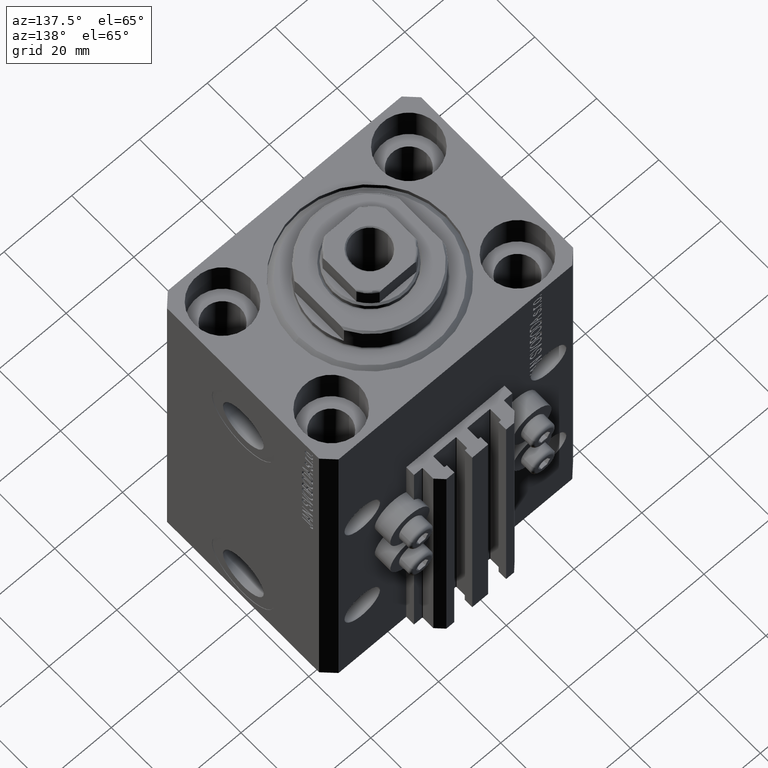
[diagram: clean part render]
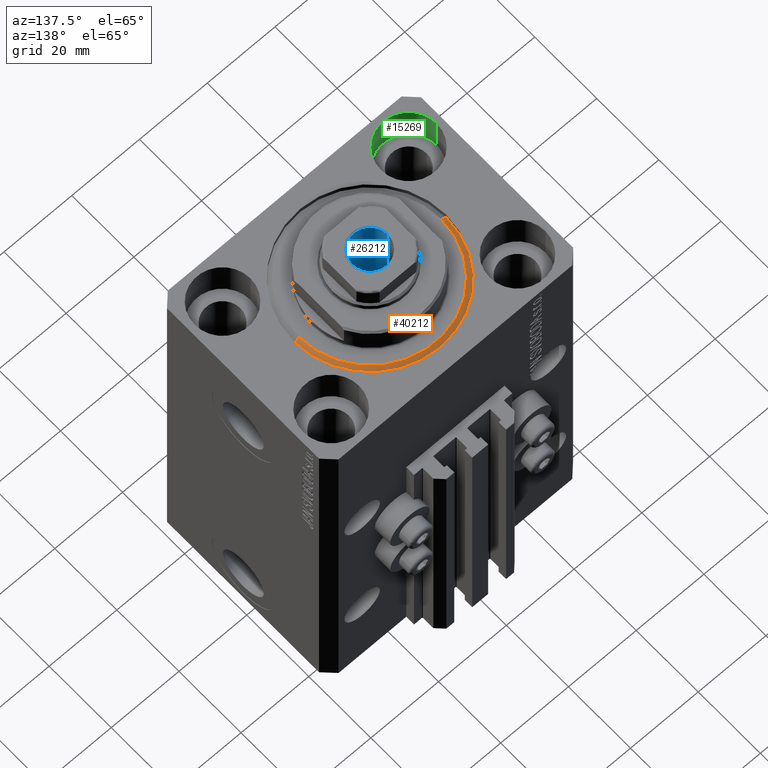
[diagram: same view with three faces highlighted in distinct colors, each labeled with its STEP entity id]
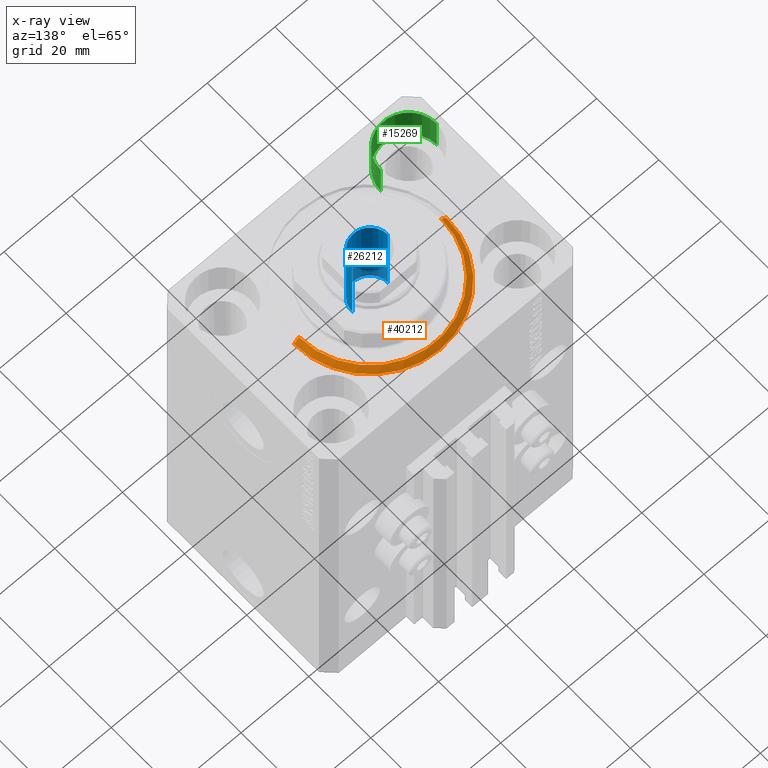
[diagram: x-ray of the same camera — body ghosted, the three highlighted faces saturated]
A machine part, auxiliary view with three faces highlighted in distinct colors.
The next image is the same camera in x-ray (body ghosted, the three faces saturated) — at least one of them is partly hidden behind the body in this view.
Their STEP definitions:

[orange] entity #40212 — the highlighted conical surface has half-angle 45 deg.
#300 = CARTESIAN_POINT ( 'NONE',  ( -22.50000000000000355, 2.755455298081545172E-15, 1.500000000000001332 ) ) ;
#2065 = VECTOR ( 'NONE', #44844, 1000.000000000000114 ) ;
#2604 = FACE_OUTER_BOUND ( 'NONE', #8171, .T. ) ;
#3111 = CONICAL_SURFACE ( 'NONE', #8540, 22.50000000000000355, 0.7853981633974517207 ) ;
#3972 = ORIENTED_EDGE ( 'NONE', *, *, #8157, .F. ) ;
#4776 = AXIS2_PLACEMENT_3D ( 'NONE', #37329, #18914, #33687 ) ;
#5324 = CARTESIAN_POINT ( 'NONE',  ( 22.50000000000000355, 0.000000000000000000, 1.500000000000001332 ) ) ;
#8157 = EDGE_CURVE ( 'NONE', #44807, #45135, #11877, .T. ) ;
#8171 = EDGE_LOOP ( 'NONE', ( #16064, #33522, #29585, #3972 ) ) ;
#8540 = AXIS2_PLACEMENT_3D ( 'NONE', #17365, #13720, #17835 ) ;
#8640 = CIRCLE ( 'NONE', #4776, 22.50000000000000355 ) ;
#10676 = CIRCLE ( 'NONE', #22311, 20.99999999999998934 ) ;
#11877 = LINE ( 'NONE', #5324, #13198 ) ;
#13198 = VECTOR ( 'NONE', #20097, 1000.000000000000114 ) ;
#13281 = DIRECTION ( 'NONE',  ( -0.000000000000000000, -0.000000000000000000, -1.000000000000000000 ) ) ;
#13720 = DIRECTION ( 'NONE',  ( -0.000000000000000000, -0.000000000000000000, 1.000000000000000000 ) ) ;
#14358 = VERTEX_POINT ( 'NONE', #14575 ) ;
#14575 = CARTESIAN_POINT ( 'NONE',  ( -22.50000000000000355, 0.000000000000000000, 1.500000000000001332 ) ) ;
#16064 = ORIENTED_EDGE ( 'NONE', *, *, #35132, .F. ) ;
#17365 = CARTESIAN_POINT ( 'NONE',  ( 0.000000000000000000, 0.000000000000000000, 1.500000000000001332 ) ) ;
#17835 = DIRECTION ( 'NONE',  ( 1.000000000000000000, 0.000000000000000000, 0.000000000000000000 ) ) ;
#18914 = DIRECTION ( 'NONE',  ( -0.000000000000000000, -0.000000000000000000, 1.000000000000000000 ) ) ;
#20097 = DIRECTION ( 'NONE',  ( 0.7071067811865500152, 0.000000000000000000, 0.7071067811865451302 ) ) ;
#22311 = AXIS2_PLACEMENT_3D ( 'NONE', #34610, #13281, #42821 ) ;
#25185 = EDGE_CURVE ( 'NONE', #27845, #14358, #37115, .T. ) ;
#27845 = VERTEX_POINT ( 'NONE', #33130 ) ;
#29457 = CARTESIAN_POINT ( 'NONE',  ( 22.50000000000000355, 2.755455298081545172E-15, 1.500000000000001332 ) ) ;
#29585 = ORIENTED_EDGE ( 'NONE', *, *, #43820, .F. ) ;
#31490 = CARTESIAN_POINT ( 'NONE',  ( 20.99999999999998934, 0.000000000000000000, 0.000000000000000000 ) ) ;
#33130 = CARTESIAN_POINT ( 'NONE',  ( -20.99999999999998934, 2.663606788145492628E-15, 0.000000000000000000 ) ) ;
#33522 = ORIENTED_EDGE ( 'NONE', *, *, #25185, .T. ) ;
#33687 = DIRECTION ( 'NONE',  ( 1.000000000000000000, 0.000000000000000000, 0.000000000000000000 ) ) ;
#34610 = CARTESIAN_POINT ( 'NONE',  ( 0.000000000000000000, 0.000000000000000000, 0.000000000000000000 ) ) ;
#35132 = EDGE_CURVE ( 'NONE', #27845, #44807, #10676, .T. ) ;
#37115 = LINE ( 'NONE', #300, #2065 ) ;
#37329 = CARTESIAN_POINT ( 'NONE',  ( 0.000000000000000000, 0.000000000000000000, 1.500000000000001332 ) ) ;
#40212 = ADVANCED_FACE ( 'NONE', ( #2604 ), #3111, .T. ) ;
#42821 = DIRECTION ( 'NONE',  ( 1.000000000000000000, 0.000000000000000000, 0.000000000000000000 ) ) ;
#43820 = EDGE_CURVE ( 'NONE', #45135, #14358, #8640, .T. ) ;
#44807 = VERTEX_POINT ( 'NONE', #31490 ) ;
#44844 = DIRECTION ( 'NONE',  ( -0.7071067811865500152, 8.659560562354963673E-17, 0.7071067811865451302 ) ) ;
#45135 = VERTEX_POINT ( 'NONE', #29457 ) ;

[blue] entity #26212 — the highlighted cylindrical surface (edge-blend (fillet) strip) has radius 5.25 mm, axis along (0, 0, 1).
#521 = EDGE_CURVE ( 'NONE', #31162, #20158, #8042, .T. ) ;
#3170 = DIRECTION ( 'NONE',  ( 1.000000000000000000, 0.000000000000000000, 0.000000000000000000 ) ) ;
#4415 = CARTESIAN_POINT ( 'NONE',  ( 5.249999999999995559, 0.000000000000000000, 115.1000000000000085 ) ) ;
#4449 = LINE ( 'NONE', #32801, #24951 ) ;
#5222 = VECTOR ( 'NONE', #11918, 1000.000000000000000 ) ;
#7365 = VERTEX_POINT ( 'NONE', #12522 ) ;
#7463 = CARTESIAN_POINT ( 'NONE',  ( 5.249999999999995559, 0.000000000000000000, 114.8000000000000114 ) ) ;
#8042 = LINE ( 'NONE', #4415, #5222 ) ;
#8310 = CARTESIAN_POINT ( 'NONE',  ( 0.000000000000000000, 0.000000000000000000, 90.10000000000000853 ) ) ;
#9947 = CYLINDRICAL_SURFACE ( 'NONE', #43631, 5.249999999999995559 ) ;
#11918 = DIRECTION ( 'NONE',  ( -0.000000000000000000, -0.000000000000000000, 1.000000000000000000 ) ) ;
#12522 = CARTESIAN_POINT ( 'NONE',  ( -5.249999999999994671, 6.429395695523597250E-16, 90.10000000000000853 ) ) ;
#13822 = CARTESIAN_POINT ( 'NONE',  ( 0.000000000000000000, 0.000000000000000000, 115.1000000000000085 ) ) ;
#13862 = DIRECTION ( 'NONE',  ( 1.000000000000000000, 0.000000000000000000, 0.000000000000000000 ) ) ;
#15102 = DIRECTION ( 'NONE',  ( -0.000000000000000000, -0.000000000000000000, 1.000000000000000000 ) ) ;
#15284 = ORIENTED_EDGE ( 'NONE', *, *, #521, .F. ) ;
#15993 = EDGE_CURVE ( 'NONE', #7365, #31162, #30371, .T. ) ;
#16355 = CIRCLE ( 'NONE', #20229, 5.249999999999995559 ) ;
#16806 = EDGE_CURVE ( 'NONE', #7365, #46278, #4449, .T. ) ;
#18123 = CARTESIAN_POINT ( 'NONE',  ( 5.249999999999994671, 0.000000000000000000, 90.10000000000000853 ) ) ;
#19206 = DIRECTION ( 'NONE',  ( 1.000000000000000000, 0.000000000000000000, 0.000000000000000000 ) ) ;
#19498 = ORIENTED_EDGE ( 'NONE', *, *, #42775, .T. ) ;
#20158 = VERTEX_POINT ( 'NONE', #7463 ) ;
#20229 = AXIS2_PLACEMENT_3D ( 'NONE', #32265, #47042, #13862 ) ;
#20617 = FACE_OUTER_BOUND ( 'NONE', #34667, .T. ) ;
#24951 = VECTOR ( 'NONE', #15102, 1000.000000000000000 ) ;
#26212 = ADVANCED_FACE ( 'NONE', ( #20617 ), #9947, .F. ) ;
#26961 = DIRECTION ( 'NONE',  ( -0.000000000000000000, -0.000000000000000000, 1.000000000000000000 ) ) ;
#30371 = CIRCLE ( 'NONE', #43506, 5.249999999999994671 ) ;
#31162 = VERTEX_POINT ( 'NONE', #18123 ) ;
#32265 = CARTESIAN_POINT ( 'NONE',  ( 0.000000000000000000, 0.000000000000000000, 114.8000000000000114 ) ) ;
#32801 = CARTESIAN_POINT ( 'NONE',  ( -5.249999999999995559, 6.429395695523600208E-16, 115.1000000000000085 ) ) ;
#34667 = EDGE_LOOP ( 'NONE', ( #41685, #46350, #19498, #15284 ) ) ;
#41685 = ORIENTED_EDGE ( 'NONE', *, *, #15993, .F. ) ;
#42775 = EDGE_CURVE ( 'NONE', #46278, #20158, #16355, .T. ) ;
#43361 = DIRECTION ( 'NONE',  ( -0.000000000000000000, -0.000000000000000000, 1.000000000000000000 ) ) ;
#43506 = AXIS2_PLACEMENT_3D ( 'NONE', #8310, #26961, #19206 ) ;
#43631 = AXIS2_PLACEMENT_3D ( 'NONE', #13822, #43361, #3170 ) ;
#44070 = CARTESIAN_POINT ( 'NONE',  ( -5.249999999999995559, 6.429395695523600208E-16, 114.8000000000000114 ) ) ;
#46278 = VERTEX_POINT ( 'NONE', #44070 ) ;
#46350 = ORIENTED_EDGE ( 'NONE', *, *, #16806, .T. ) ;
#47042 = DIRECTION ( 'NONE',  ( 0.000000000000000000, 0.000000000000000000, 1.000000000000000000 ) ) ;

[green] entity #15269 — the highlighted cylindrical surface (partial cylindrical patch) has radius 8.25 mm, axis along (0, 0, 1).
#678 = LINE ( 'NONE', #8177, #14818 ) ;
#2325 = DIRECTION ( 'NONE',  ( -0.000000000000000000, -0.000000000000000000, 1.000000000000000000 ) ) ;
#4052 = ORIENTED_EDGE ( 'NONE', *, *, #5936, .T. ) ;
#5480 = EDGE_CURVE ( 'NONE', #33353, #37560, #20077, .T. ) ;
#5936 = EDGE_CURVE ( 'NONE', #45141, #26633, #44825, .T. ) ;
#8177 = CARTESIAN_POINT ( 'NONE',  ( -35.75000000000000711, -17.50000000000000000, -11.00000000000000000 ) ) ;
#10153 = EDGE_CURVE ( 'NONE', #33353, #45141, #678, .T. ) ;
#14818 = VECTOR ( 'NONE', #37729, 1000.000000000000000 ) ;
#15206 = VECTOR ( 'NONE', #2325, 1000.000000000000000 ) ;
#15269 = ADVANCED_FACE ( 'NONE', ( #36773 ), #18373, .F. ) ;
#15442 = CARTESIAN_POINT ( 'NONE',  ( -27.50000000000000355, -17.50000000000000000, -11.00000000000000000 ) ) ;
#15945 = ORIENTED_EDGE ( 'NONE', *, *, #10153, .T. ) ;
#16246 = CARTESIAN_POINT ( 'NONE',  ( -27.50000000000000355, -17.50000000000000000, -11.00000000000000000 ) ) ;
#17709 = ORIENTED_EDGE ( 'NONE', *, *, #5480, .F. ) ;
#18373 = CYLINDRICAL_SURFACE ( 'NONE', #44270, 8.250000000000000000 ) ;
#19105 = DIRECTION ( 'NONE',  ( 1.000000000000000000, 0.000000000000000000, 0.000000000000000000 ) ) ;
#20077 = CIRCLE ( 'NONE', #32450, 8.250000000000000000 ) ;
#22753 = CARTESIAN_POINT ( 'NONE',  ( -27.50000000000000355, -17.50000000000000000, 0.000000000000000000 ) ) ;
#24713 = AXIS2_PLACEMENT_3D ( 'NONE', #22753, #34121, #19105 ) ;
#26595 = DIRECTION ( 'NONE',  ( -0.000000000000000000, -0.000000000000000000, 1.000000000000000000 ) ) ;
#26633 = VERTEX_POINT ( 'NONE', #46942 ) ;
#27286 = CARTESIAN_POINT ( 'NONE',  ( -35.75000000000000711, -17.50000000000000000, -11.00000000000000000 ) ) ;
#32450 = AXIS2_PLACEMENT_3D ( 'NONE', #16246, #42394, #45557 ) ;
#32611 = EDGE_CURVE ( 'NONE', #37560, #26633, #36445, .T. ) ;
#33136 = DIRECTION ( 'NONE',  ( 1.000000000000000000, 0.000000000000000000, 0.000000000000000000 ) ) ;
#33353 = VERTEX_POINT ( 'NONE', #27286 ) ;
#34121 = DIRECTION ( 'NONE',  ( 0.000000000000000000, 0.000000000000000000, 1.000000000000000000 ) ) ;
#35325 = ORIENTED_EDGE ( 'NONE', *, *, #32611, .F. ) ;
#36445 = LINE ( 'NONE', #42986, #15206 ) ;
#36773 = FACE_OUTER_BOUND ( 'NONE', #38567, .T. ) ;
#37560 = VERTEX_POINT ( 'NONE', #44853 ) ;
#37729 = DIRECTION ( 'NONE',  ( -0.000000000000000000, -0.000000000000000000, 1.000000000000000000 ) ) ;
#38567 = EDGE_LOOP ( 'NONE', ( #17709, #15945, #4052, #35325 ) ) ;
#42394 = DIRECTION ( 'NONE',  ( 0.000000000000000000, 0.000000000000000000, 1.000000000000000000 ) ) ;
#42986 = CARTESIAN_POINT ( 'NONE',  ( -19.25000000000000355, -17.50000000000000000, -11.00000000000000000 ) ) ;
#44240 = CARTESIAN_POINT ( 'NONE',  ( -35.75000000000000711, -17.50000000000000000, 0.000000000000000000 ) ) ;
#44270 = AXIS2_PLACEMENT_3D ( 'NONE', #15442, #26595, #33136 ) ;
#44825 = CIRCLE ( 'NONE', #24713, 8.250000000000000000 ) ;
#44853 = CARTESIAN_POINT ( 'NONE',  ( -19.25000000000000355, -17.50000000000000000, -11.00000000000000000 ) ) ;
#45141 = VERTEX_POINT ( 'NONE', #44240 ) ;
#45557 = DIRECTION ( 'NONE',  ( 1.000000000000000000, 0.000000000000000000, 0.000000000000000000 ) ) ;
#46942 = CARTESIAN_POINT ( 'NONE',  ( -19.25000000000000355, -17.50000000000000000, 0.000000000000000000 ) ) ;